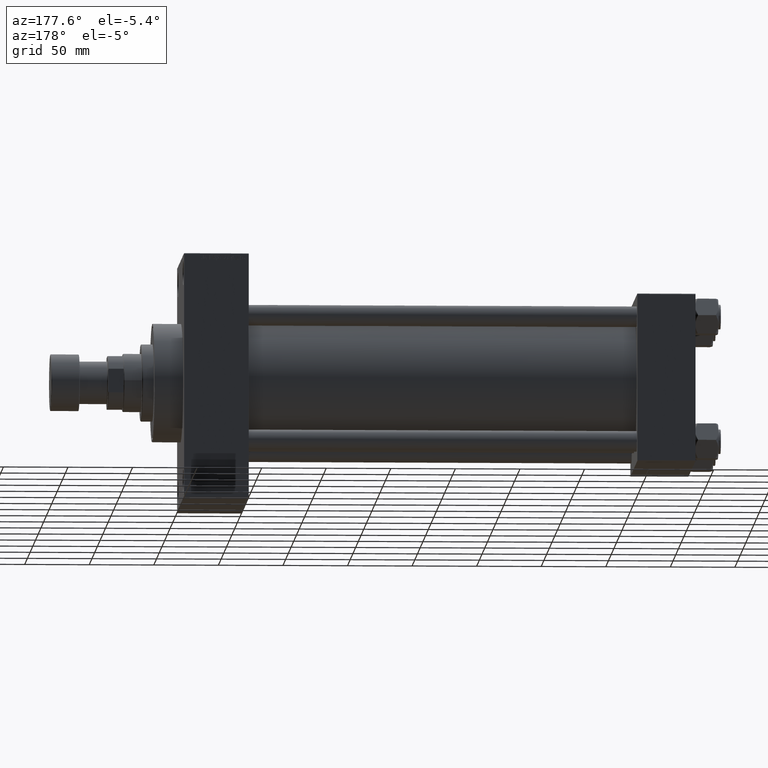
[diagram: clean part render]
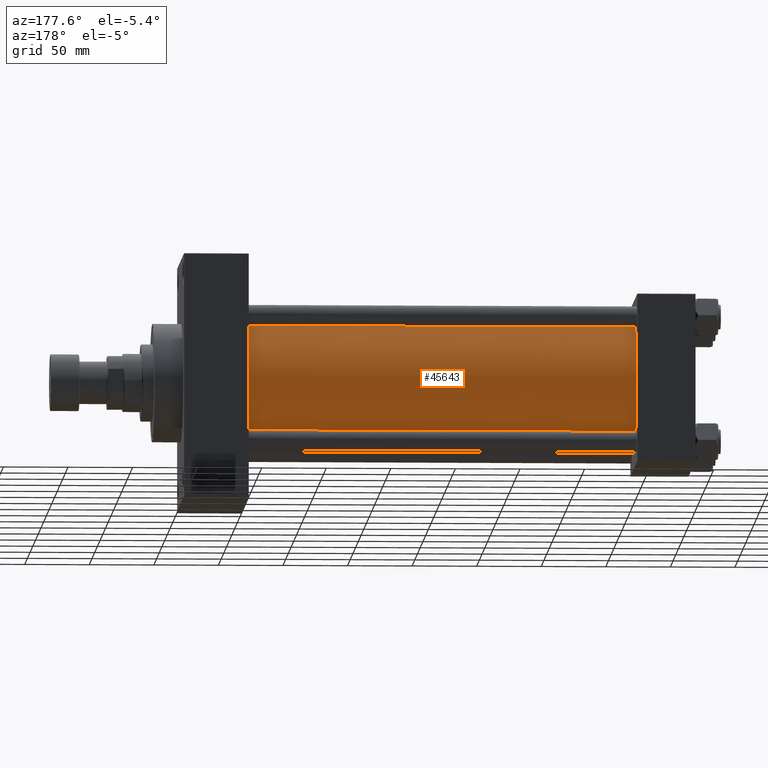
[diagram: same view with one face highlighted and labeled with its STEP entity id]
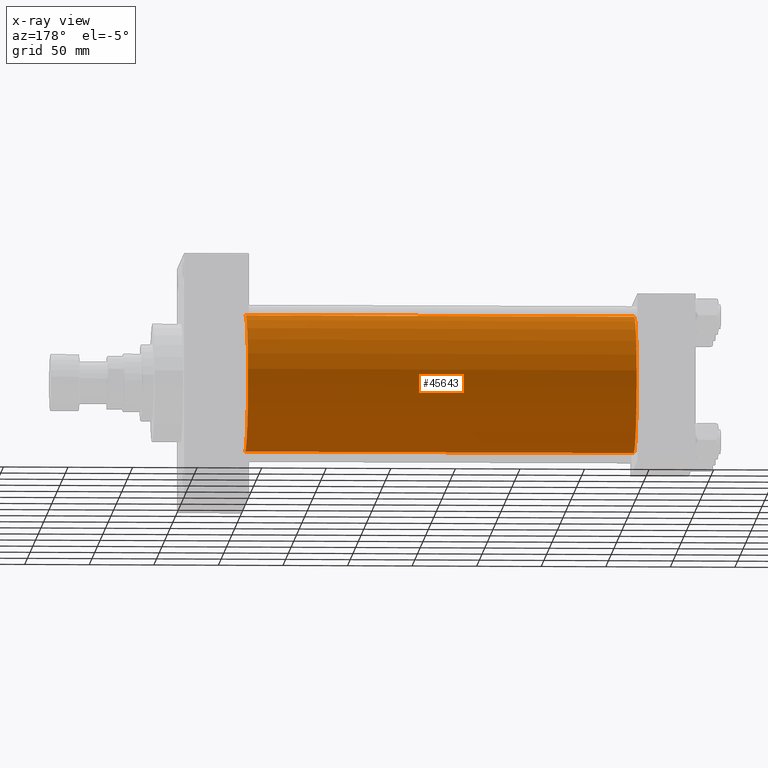
[diagram: x-ray of the same camera — body ghosted, the highlighted face saturated]
A machine part, auxiliary view. The second image highlights one B-rep face of the part: STEP entity #45643.
The next image is the same camera in x-ray: the body ghosted, the highlighted face saturated — about 0% of this face is hidden behind the body in this view.
In plain terms, the highlighted cylindrical surface (partial cylindrical patch) has radius 53 mm, axis along (-1, -0, -0).
Its self-contained STEP definition (entity closure, byte-faithful):
#394 = AXIS2_PLACEMENT_3D ( 'NONE', #42548, #4981, #34741 ) ;
#1905 = CARTESIAN_POINT ( 'NONE',  ( 346.0000000000000000, 3.888542821515762466E-15, -53.00000000000000711 ) ) ;
#2551 = EDGE_CURVE ( 'NONE', #25768, #14446, #4932, .T. ) ;
#3949 = DIRECTION ( 'NONE',  ( -1.000000000000000000, -0.000000000000000000, -0.000000000000000000 ) ) ;
#4932 = CIRCLE ( 'NONE', #9595, 53.00000000000000711 ) ;
#4981 = DIRECTION ( 'NONE',  ( 1.000000000000000000, -0.000000000000000000, 0.000000000000000000 ) ) ;
#6932 = FACE_OUTER_BOUND ( 'NONE', #45237, .T. ) ;
#8931 = EDGE_CURVE ( 'NONE', #14446, #21969, #26617, .T. ) ;
#9595 = AXIS2_PLACEMENT_3D ( 'NONE', #14281, #36463, #36945 ) ;
#9691 = VECTOR ( 'NONE', #3949, 1000.000000000000000 ) ;
#11213 = EDGE_CURVE ( 'NONE', #25768, #36980, #47170, .T. ) ;
#14281 = CARTESIAN_POINT ( 'NONE',  ( 346.0000000000000000, -2.602085213965210642E-15, 0.000000000000000000 ) ) ;
#14446 = VERTEX_POINT ( 'NONE', #15614 ) ;
#14968 = CARTESIAN_POINT ( 'NONE',  ( 44.99999999999998579, 3.888542821515762466E-15, -53.00000000000000711 ) ) ;
#15614 = CARTESIAN_POINT ( 'NONE',  ( 346.0000000000000000, -2.602085213965210642E-15, 53.00000000000000711 ) ) ;
#18484 = ORIENTED_EDGE ( 'NONE', *, *, #8931, .F. ) ;
#19506 = AXIS2_PLACEMENT_3D ( 'NONE', #44021, #40359, #21096 ) ;
#21056 = CARTESIAN_POINT ( 'NONE',  ( 346.0000000000000000, 3.888542821515762466E-15, -53.00000000000000711 ) ) ;
#21096 = DIRECTION ( 'NONE',  ( 0.000000000000000000, 0.000000000000000000, 1.000000000000000000 ) ) ;
#21336 = ORIENTED_EDGE ( 'NONE', *, *, #31393, .T. ) ;
#21969 = VERTEX_POINT ( 'NONE', #32073 ) ;
#25768 = VERTEX_POINT ( 'NONE', #1905 ) ;
#26617 = LINE ( 'NONE', #41520, #9691 ) ;
#28448 = CIRCLE ( 'NONE', #394, 53.00000000000000711 ) ;
#28900 = CYLINDRICAL_SURFACE ( 'NONE', #19506, 53.00000000000000711 ) ;
#31393 = EDGE_CURVE ( 'NONE', #36980, #21969, #28448, .T. ) ;
#32073 = CARTESIAN_POINT ( 'NONE',  ( 44.99999999999998579, -2.602085213965210642E-15, 53.00000000000000711 ) ) ;
#34741 = DIRECTION ( 'NONE',  ( 0.000000000000000000, 0.000000000000000000, 1.000000000000000000 ) ) ;
#36463 = DIRECTION ( 'NONE',  ( 1.000000000000000000, 0.000000000000000000, 0.000000000000000000 ) ) ;
#36826 = ORIENTED_EDGE ( 'NONE', *, *, #11213, .T. ) ;
#36945 = DIRECTION ( 'NONE',  ( 0.000000000000000000, 0.000000000000000000, -1.000000000000000000 ) ) ;
#36980 = VERTEX_POINT ( 'NONE', #14968 ) ;
#40359 = DIRECTION ( 'NONE',  ( -1.000000000000000000, -0.000000000000000000, -0.000000000000000000 ) ) ;
#41520 = CARTESIAN_POINT ( 'NONE',  ( 346.0000000000000000, -2.602085213965210642E-15, 53.00000000000000711 ) ) ;
#42548 = CARTESIAN_POINT ( 'NONE',  ( 44.99999999999998579, -2.602085213965210642E-15, 0.000000000000000000 ) ) ;
#44021 = CARTESIAN_POINT ( 'NONE',  ( 346.0000000000000000, -2.602085213965210642E-15, 0.000000000000000000 ) ) ;
#45237 = EDGE_LOOP ( 'NONE', ( #45516, #36826, #21336, #18484 ) ) ;
#45516 = ORIENTED_EDGE ( 'NONE', *, *, #2551, .F. ) ;
#45643 = ADVANCED_FACE ( 'NONE', ( #6932 ), #28900, .T. ) ;
#45661 = VECTOR ( 'NONE', #47422, 1000.000000000000000 ) ;
#47170 = LINE ( 'NONE', #21056, #45661 ) ;
#47422 = DIRECTION ( 'NONE',  ( -1.000000000000000000, -0.000000000000000000, -0.000000000000000000 ) ) ;